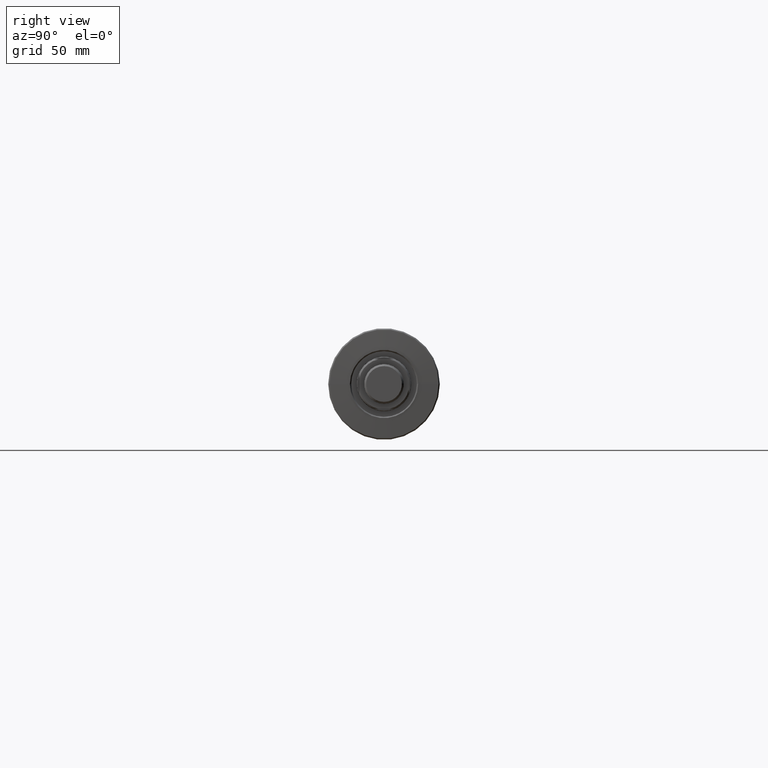
[diagram: clean part render]
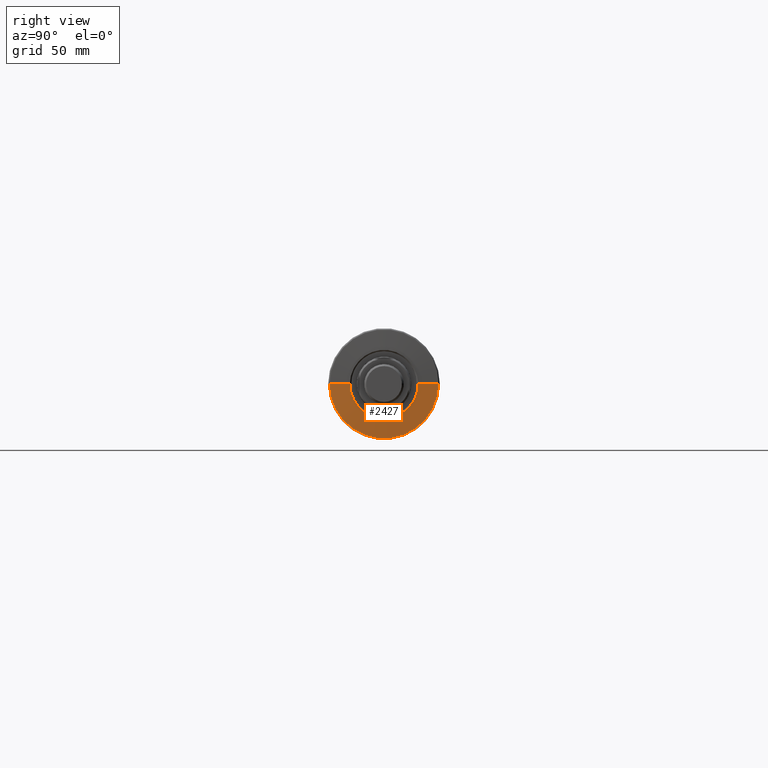
[diagram: same view with one face highlighted and labeled with its STEP entity id]
A machine part, right view. The second image highlights one B-rep face of the part: STEP entity #2427.
In plain terms, the highlighted conical surface has half-angle 87.138 deg.
Its self-contained STEP definition (entity closure, byte-faithful):
#29 = ORIENTED_EDGE ( 'NONE', *, *, #2755, .T. ) ;
#152 = VERTEX_POINT ( 'NONE', #1413 ) ;
#372 = LINE ( 'NONE', #384, #1341 ) ;
#384 = CARTESIAN_POINT ( 'NONE',  ( -1.100000000000665556, -21.99999999999997158, 0.000000000000000000 ) ) ;
#387 = EDGE_CURVE ( 'NONE', #2869, #2645, #585, .T. ) ;
#432 = ORIENTED_EDGE ( 'NONE', *, *, #387, .T. ) ;
#461 = CIRCLE ( 'NONE', #1059, 22.00000000000006040 ) ;
#468 = CARTESIAN_POINT ( 'NONE',  ( -0.6874688084723999948, 8.994929653312370924E-14, 0.000000000000000000 ) ) ;
#480 = EDGE_LOOP ( 'NONE', ( #2708, #432, #1476, #29 ) ) ;
#585 = CIRCLE ( 'NONE', #955, 13.74937616943892849 ) ;
#613 = DIRECTION ( 'NONE',  ( -0.04993761694392855749, 0.9987523388778428712, 1.223118854947682994E-16 ) ) ;
#649 = DIRECTION ( 'NONE',  ( -3.035766082959404132E-15, 1.000000000000000000, 0.000000000000000000 ) ) ;
#865 = CARTESIAN_POINT ( 'NONE',  ( -1.100000000000732392, 8.869536993631697946E-14, 0.000000000000000000 ) ) ;
#955 = AXIS2_PLACEMENT_3D ( 'NONE', #468, #1352, #2420 ) ;
#972 = FACE_OUTER_BOUND ( 'NONE', #480, .T. ) ;
#1059 = AXIS2_PLACEMENT_3D ( 'NONE', #865, #1758, #649 ) ;
#1153 = VECTOR ( 'NONE', #613, 1000.000000000000000 ) ;
#1269 = DIRECTION ( 'NONE',  ( -0.04993761694392248596, -0.9987523388778432043, 0.000000000000000000 ) ) ;
#1272 = EDGE_CURVE ( 'NONE', #2869, #1823, #2849, .T. ) ;
#1341 = VECTOR ( 'NONE', #1269, 1000.000000000000114 ) ;
#1352 = DIRECTION ( 'NONE',  ( -1.000000000000000000, -3.039592211588226037E-15, 0.000000000000000000 ) ) ;
#1370 = EDGE_CURVE ( 'NONE', #2645, #152, #372, .T. ) ;
#1405 = CARTESIAN_POINT ( 'NONE',  ( -0.6874688084724417392, 13.74937616943901908, 2.189017954870906259E-15 ) ) ;
#1413 = CARTESIAN_POINT ( 'NONE',  ( -1.100000000000665556, -21.99999999999997158, 0.000000000000000000 ) ) ;
#1476 = ORIENTED_EDGE ( 'NONE', *, *, #1370, .T. ) ;
#1641 = DIRECTION ( 'NONE',  ( 3.035766082959404132E-15, -1.000000000000000000, 0.000000000000000000 ) ) ;
#1758 = DIRECTION ( 'NONE',  ( 1.000000000000000000, 3.039592211588219332E-15, -0.000000000000000000 ) ) ;
#1823 = VERTEX_POINT ( 'NONE', #2556 ) ;
#1865 = CARTESIAN_POINT ( 'NONE',  ( -1.100000000000732392, 8.869536993631697946E-14, 0.000000000000000000 ) ) ;
#1991 = AXIS2_PLACEMENT_3D ( 'NONE', #1865, #2753, #1641 ) ;
#2399 = CARTESIAN_POINT ( 'NONE',  ( -1.100000000000799227, 22.00000000000015277, 2.694222958124184698E-15 ) ) ;
#2410 = CARTESIAN_POINT ( 'NONE',  ( -0.6874688084723582504, -13.74937616943883789, 0.000000000000000000 ) ) ;
#2420 = DIRECTION ( 'NONE',  ( -3.035903820383676297E-15, 1.000000000000000000, 0.000000000000000000 ) ) ;
#2427 = ADVANCED_FACE ( 'NONE', ( #972 ), #2790, .T. ) ;
#2556 = CARTESIAN_POINT ( 'NONE',  ( -1.100000000000799227, 22.00000000000015277, 2.724839128102870063E-15 ) ) ;
#2645 = VERTEX_POINT ( 'NONE', #2410 ) ;
#2708 = ORIENTED_EDGE ( 'NONE', *, *, #1272, .F. ) ;
#2753 = DIRECTION ( 'NONE',  ( -1.000000000000000000, -3.039592211588219332E-15, 0.000000000000000000 ) ) ;
#2755 = EDGE_CURVE ( 'NONE', #152, #1823, #461, .T. ) ;
#2790 = CONICAL_SURFACE ( 'NONE', #1991, 22.00000000000006040, 1.520837931072920535 ) ;
#2849 = LINE ( 'NONE', #2399, #1153 ) ;
#2869 = VERTEX_POINT ( 'NONE', #1405 ) ;